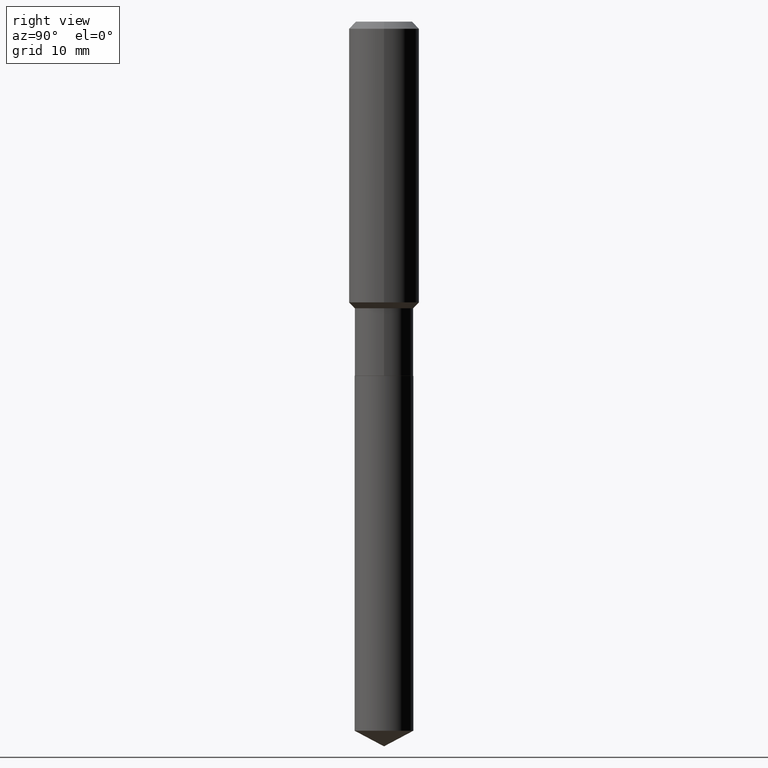
[diagram: clean part render]
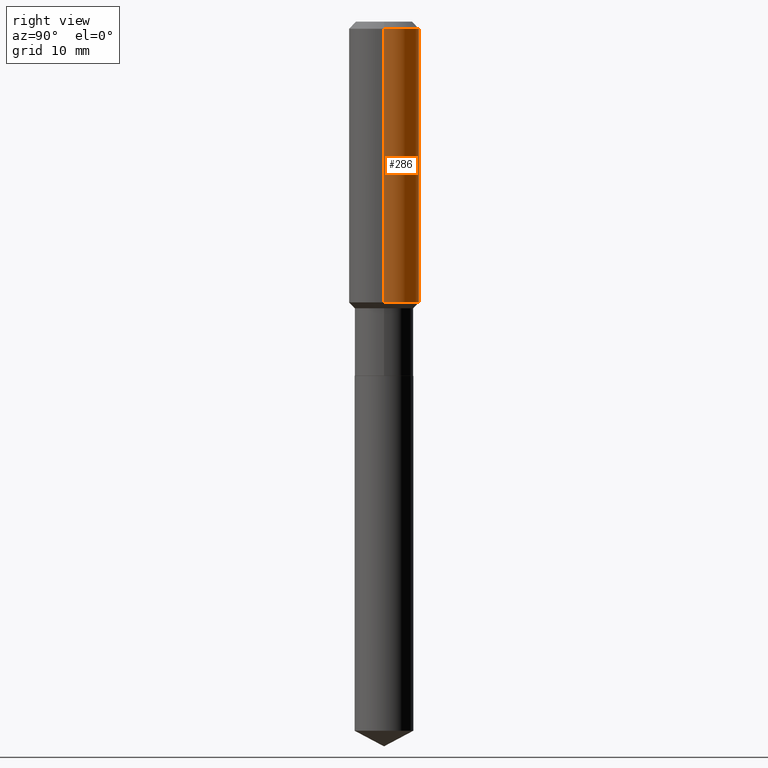
[diagram: same view with one face highlighted and labeled with its STEP entity id]
A machine part, right view. The second image highlights one B-rep face of the part: STEP entity #286.
In plain terms, the highlighted cylindrical surface (edge-blend (fillet) strip) has radius 5 mm, axis along (-0, 0, 1).
Its self-contained STEP definition (entity closure, byte-faithful):
#6 = LINE ( 'NONE', #74, #443 ) ;
#14 = CIRCLE ( 'NONE', #383, 0.1968500000000000527 ) ;
#17 = CARTESIAN_POINT ( 'NONE',  ( -0.1968500000000001915, -4.086413807978820996E-15, -1.570999999999999508 ) ) ;
#25 = DIRECTION ( 'NONE',  ( -2.445468806185136597E-29, 3.491481338843145583E-15, 1.000000000000000000 ) ) ;
#27 = AXIS2_PLACEMENT_3D ( 'NONE', #28, #25, #66 ) ;
#28 = CARTESIAN_POINT ( 'NONE',  ( 0.000000000000000000, 0.000000000000000000, 0.000000000000000000 ) ) ;
#49 = LINE ( 'NONE', #114, #213 ) ;
#66 = DIRECTION ( 'NONE',  ( 1.000000000000000000, -6.982962677686266711E-15, 4.876176775795935793E-29 ) ) ;
#71 = AXIS2_PLACEMENT_3D ( 'NONE', #240, #356, #326 ) ;
#74 = CARTESIAN_POINT ( 'NONE',  ( -0.1968500000000001082, 1.398703375343757985E-15, -9.682923725166787881E-30 ) ) ;
#108 = EDGE_CURVE ( 'NONE', #197, #315, #6, .T. ) ;
#114 = CARTESIAN_POINT ( 'NONE',  ( 0.1968500000000001082, -1.374596203102542397E-15, 9.598753983154305062E-30 ) ) ;
#128 = ORIENTED_EDGE ( 'NONE', *, *, #108, .T. ) ;
#130 = CARTESIAN_POINT ( 'NONE',  ( 0.1968500000000001915, -6.859713386425121969E-15, -1.570999999999999508 ) ) ;
#138 = CARTESIAN_POINT ( 'NONE',  ( -0.1968500000000000527, -1.412585026472659394E-15, -0.03937000000000027283 ) ) ;
#197 = VERTEX_POINT ( 'NONE', #17 ) ;
#199 = VERTEX_POINT ( 'NONE', #130 ) ;
#213 = VECTOR ( 'NONE', #364, 39.37007874015748143 ) ;
#220 = EDGE_LOOP ( 'NONE', ( #327, #128, #429, #392 ) ) ;
#224 = CARTESIAN_POINT ( 'NONE',  ( 0.1968500000000000527, -1.512055823412797583E-15, -0.03937000000000027283 ) ) ;
#240 = CARTESIAN_POINT ( 'NONE',  ( 3.841831494516847952E-29, -5.485117183322580361E-15, -1.570999999999999508 ) ) ;
#252 = CARTESIAN_POINT ( 'NONE',  ( 9.627810689950950651E-31, -1.374596203102555808E-16, -0.03937000000000027283 ) ) ;
#262 = EDGE_CURVE ( 'NONE', #365, #315, #14, .T. ) ;
#273 = DIRECTION ( 'NONE',  ( -2.445468806185136877E-29, 3.491481338843145188E-15, 1.000000000000000000 ) ) ;
#286 = ADVANCED_FACE ( 'NONE', ( #340 ), #337, .T. ) ;
#315 = VERTEX_POINT ( 'NONE', #138 ) ;
#323 = DIRECTION ( 'NONE',  ( -2.445468806185136597E-29, 3.491481338843145583E-15, 1.000000000000000000 ) ) ;
#326 = DIRECTION ( 'NONE',  ( 1.000000000000000000, -6.982962677686266711E-15, 0.000000000000000000 ) ) ;
#327 = ORIENTED_EDGE ( 'NONE', *, *, #483, .T. ) ;
#337 = CYLINDRICAL_SURFACE ( 'NONE', #27, 0.1968500000000001082 ) ;
#340 = FACE_OUTER_BOUND ( 'NONE', #220, .T. ) ;
#356 = DIRECTION ( 'NONE',  ( -2.445468806185136597E-29, 3.491481338843145583E-15, 1.000000000000000000 ) ) ;
#364 = DIRECTION ( 'NONE',  ( -2.445468806185136877E-29, 3.491481338843145188E-15, 1.000000000000000000 ) ) ;
#365 = VERTEX_POINT ( 'NONE', #224 ) ;
#383 = AXIS2_PLACEMENT_3D ( 'NONE', #252, #323, #439 ) ;
#392 = ORIENTED_EDGE ( 'NONE', *, *, #489, .F. ) ;
#429 = ORIENTED_EDGE ( 'NONE', *, *, #262, .F. ) ;
#439 = DIRECTION ( 'NONE',  ( 1.000000000000000000, -6.982962677686266711E-15, 0.000000000000000000 ) ) ;
#443 = VECTOR ( 'NONE', #273, 39.37007874015748143 ) ;
#472 = CIRCLE ( 'NONE', #71, 0.1968500000000001915 ) ;
#483 = EDGE_CURVE ( 'NONE', #199, #197, #472, .T. ) ;
#489 = EDGE_CURVE ( 'NONE', #199, #365, #49, .T. ) ;